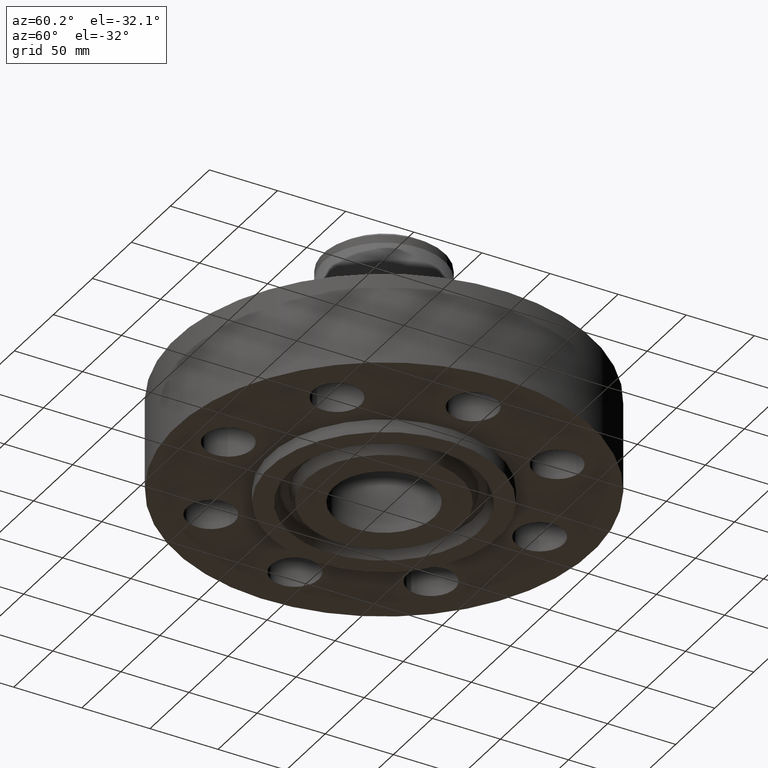
[diagram: clean part render]
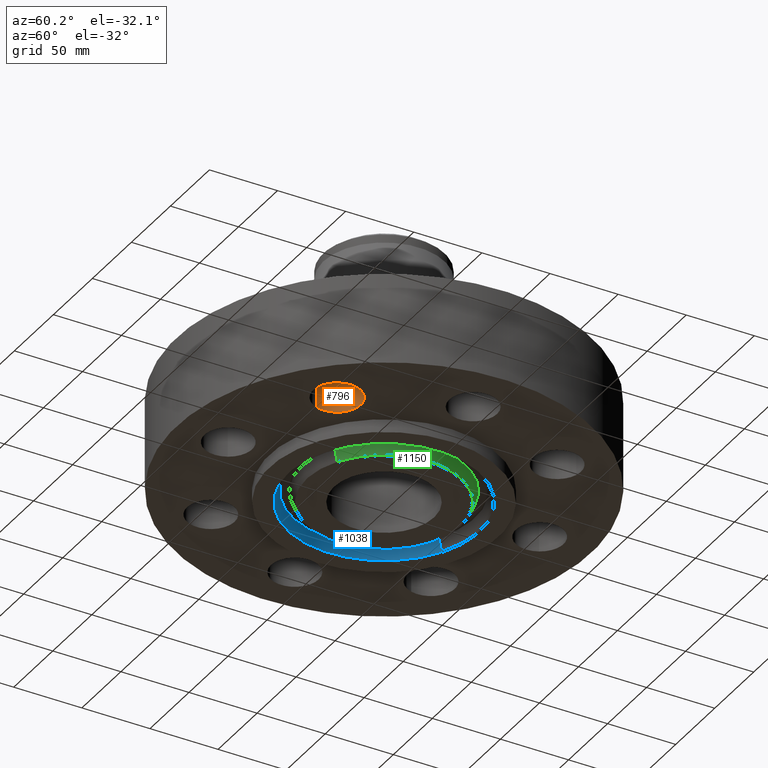
[diagram: same view with three faces highlighted in distinct colors, each labeled with its STEP entity id]
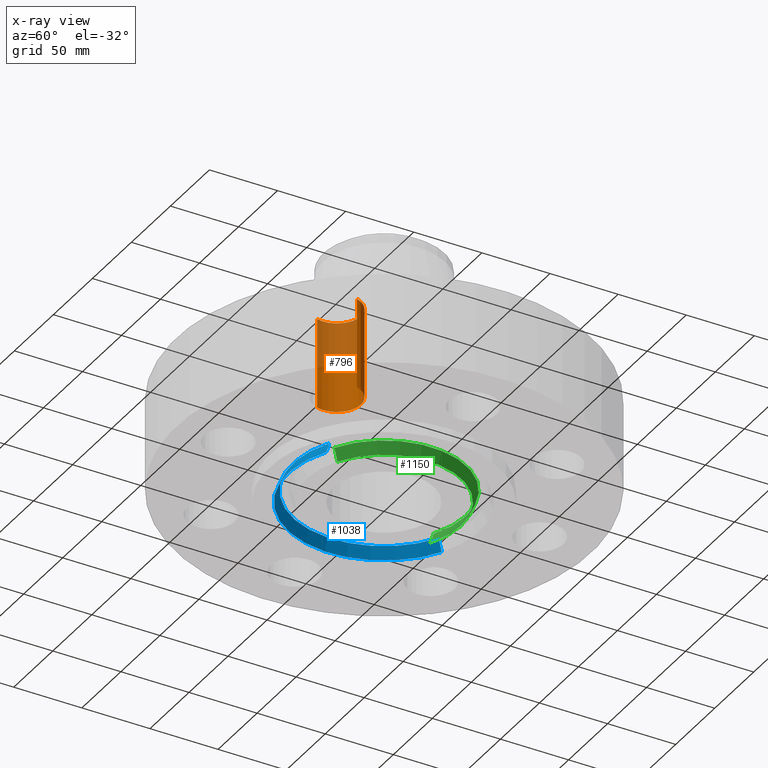
[diagram: x-ray of the same camera — body ghosted, the three highlighted faces saturated]
A machine part, auxiliary view with three faces highlighted in distinct colors.
The next image is the same camera in x-ray (body ghosted, the three faces saturated) — at least one of them is partly hidden behind the body in this view.
Their STEP definitions:

[orange] entity #796 — the highlighted cylindrical surface (edge-blend (fillet) strip) has radius 17.526 mm, axis along (-0, 0, -1).
#545=AXIS2_PLACEMENT_3D('Circle Axis2P3D',#543,#544,$) ;
#757=AXIS2_PLACEMENT_3D('Cylinder Axis2P3D',#754,#755,#756) ;
#787=AXIS2_PLACEMENT_3D('Circle Axis2P3D',#785,#786,$) ;
#538=CARTESIAN_POINT('Vertex',(3.84406976004,-2.98771823886,0.)) ;
#540=CARTESIAN_POINT('Vertex',(2.51989127066,-3.37624279184,0.)) ;
#543=CARTESIAN_POINT('Axis2P3D Location',(3.18198051535,-3.18198051535,0.)) ;
#754=CARTESIAN_POINT('Axis2P3D Location',(3.18198051535,-3.18198051535,2.61606299214)) ;
#759=CARTESIAN_POINT('Line Origine',(3.84406976004,-2.98771823886,1.31000000001)) ;
#763=CARTESIAN_POINT('Vertex',(3.84406976004,-2.98771823886,2.62000000001)) ;
#766=CARTESIAN_POINT('Line Origine',(2.51989127066,-3.37624279184,1.31000000001)) ;
#770=CARTESIAN_POINT('Vertex',(2.51989127066,-3.37624279184,2.62000000001)) ;
#785=CARTESIAN_POINT('Axis2P3D Location',(3.18198051535,-3.18198051535,2.62000000001)) ;
#544=DIRECTION('Axis2P3D Direction',(0.,0.,-0.0393700787402)) ;
#755=DIRECTION('Axis2P3D Direction',(-0.,0.,-0.0393700787402)) ;
#756=DIRECTION('Axis2P3D XDirection',(-0.0377775444876,-0.0110842335096,0.)) ;
#760=DIRECTION('Vector Direction',(0.,0.,-0.0393700787402)) ;
#767=DIRECTION('Vector Direction',(0.,0.,-0.0393700787402)) ;
#786=DIRECTION('Axis2P3D Direction',(-0.,0.,-0.0393700787402)) ;
#761=VECTOR('Line Direction',#760,0.0393700787402) ;
#768=VECTOR('Line Direction',#767,0.0393700787402) ;
#791=ORIENTED_EDGE('',*,*,#772,.F.) ;
#792=ORIENTED_EDGE('',*,*,#547,.T.) ;
#793=ORIENTED_EDGE('',*,*,#765,.T.) ;
#794=ORIENTED_EDGE('',*,*,#789,.F.) ;
#796=ADVANCED_FACE('PartBody',(#795),#758,.F.) ;
#546=CIRCLE('generated circle',#545,0.690000000003) ;
#788=CIRCLE('generated circle',#787,0.690000000003) ;
#758=CYLINDRICAL_SURFACE('generated cylinder',#757,0.690000000003) ;
#547=EDGE_CURVE('',#541,#539,#546,.T.) ;
#765=EDGE_CURVE('',#539,#764,#762,.F.) ;
#772=EDGE_CURVE('',#541,#771,#769,.F.) ;
#789=EDGE_CURVE('',#771,#764,#788,.T.) ;
#790=EDGE_LOOP('',(#791,#792,#793,#794)) ;
#795=FACE_OUTER_BOUND('',#790,.T.) ;
#762=LINE('Line',#759,#761) ;
#769=LINE('Line',#766,#768) ;
#539=VERTEX_POINT('',#538) ;
#541=VERTEX_POINT('',#540) ;
#764=VERTEX_POINT('',#763) ;
#771=VERTEX_POINT('',#770) ;

[blue] entity #1038 — the highlighted conical surface has half-angle 23 deg.
#937=AXIS2_PLACEMENT_3D('Circle Axis2P3D',#935,#936,$) ;
#984=AXIS2_PLACEMENT_3D('Circle Axis2P3D',#982,#983,$) ;
#1020=AXIS2_PLACEMENT_3D('Cone Axis2P3D',#1017,#1018,#1019) ;
#935=CARTESIAN_POINT('Axis2P3D Location',(-6.99353086378E-017,-8.39223703654E-016,-0.375000000001)) ;
#939=CARTESIAN_POINT('Vertex',(1.32585132702,-2.42695457492,-0.375000000001)) ;
#941=CARTESIAN_POINT('Vertex',(-1.32585132702,2.42695457492,-0.375000000001)) ;
#982=CARTESIAN_POINT('Axis2P3D Location',(0.,0.,-0.0383839389053)) ;
#986=CARTESIAN_POINT('Vertex',(-1.25734858943,2.30156115487,-0.0383839389053)) ;
#988=CARTESIAN_POINT('Vertex',(1.25734858943,-2.30156115487,-0.0383839389053)) ;
#1017=CARTESIAN_POINT('Axis2P3D Location',(0.,0.,-0.0383839389053)) ;
#1022=CARTESIAN_POINT('Line Origine',(-1.29159995823,2.3642578649,-0.206691969453)) ;
#1027=CARTESIAN_POINT('Line Origine',(1.29159995823,-2.3642578649,-0.206691969453)) ;
#936=DIRECTION('Axis2P3D Direction',(0.,0.,-0.0393700787402)) ;
#983=DIRECTION('Axis2P3D Direction',(0.,0.,0.0393700787402)) ;
#1018=DIRECTION('Axis2P3D Direction',(-0.,-0.,-0.0393700787402)) ;
#1019=DIRECTION('Axis2P3D XDirection',(-0.0188750212049,0.0345504945626,0.)) ;
#1023=DIRECTION('Vector Direction',(-0.00737505833565,0.0134999537303,-0.0362403485611)) ;
#1028=DIRECTION('Vector Direction',(0.00737505833565,-0.0134999537303,-0.0362403485611)) ;
#1024=VECTOR('Line Direction',#1023,0.0393700787402) ;
#1029=VECTOR('Line Direction',#1028,0.0393700787402) ;
#1033=ORIENTED_EDGE('',*,*,#943,.T.) ;
#1034=ORIENTED_EDGE('',*,*,#1026,.T.) ;
#1035=ORIENTED_EDGE('',*,*,#990,.T.) ;
#1036=ORIENTED_EDGE('',*,*,#1031,.F.) ;
#1038=ADVANCED_FACE('PartBody',(#1037),#1021,.F.) ;
#938=CIRCLE('generated circle',#937,2.76550000001) ;
#985=CIRCLE('generated circle',#984,2.62261495934) ;
#1021=CONICAL_SURFACE('Cone',#1020,2.62261495934,0.401425727959) ;
#943=EDGE_CURVE('',#940,#942,#938,.T.) ;
#990=EDGE_CURVE('',#987,#989,#985,.T.) ;
#1026=EDGE_CURVE('',#942,#987,#1025,.F.) ;
#1031=EDGE_CURVE('',#940,#989,#1030,.F.) ;
#1032=EDGE_LOOP('',(#1033,#1034,#1035,#1036)) ;
#1037=FACE_OUTER_BOUND('',#1032,.T.) ;
#1025=LINE('Line',#1022,#1024) ;
#1030=LINE('Line',#1027,#1029) ;
#940=VERTEX_POINT('',#939) ;
#942=VERTEX_POINT('',#941) ;
#987=VERTEX_POINT('',#986) ;
#989=VERTEX_POINT('',#988) ;

[green] entity #1150 — the highlighted conical surface has half-angle 23 deg.
#956=AXIS2_PLACEMENT_3D('Circle Axis2P3D',#954,#955,$) ;
#1100=AXIS2_PLACEMENT_3D('Circle Axis2P3D',#1098,#1099,$) ;
#1132=AXIS2_PLACEMENT_3D('Cone Axis2P3D',#1129,#1130,#1131) ;
#954=CARTESIAN_POINT('Axis2P3D Location',(-2.79741234551E-016,0.,-0.375000000001)) ;
#958=CARTESIAN_POINT('Vertex',(-1.07127636602,1.96095823455,-0.375000000001)) ;
#960=CARTESIAN_POINT('Vertex',(1.07127636602,-1.96095823455,-0.375000000001)) ;
#1095=CARTESIAN_POINT('Vertex',(1.1397791036,-2.0863516546,-0.0383839389053)) ;
#1098=CARTESIAN_POINT('Axis2P3D Location',(0.,0.,-0.0383839389053)) ;
#1102=CARTESIAN_POINT('Vertex',(-1.1397791036,2.0863516546,-0.0383839389053)) ;
#1129=CARTESIAN_POINT('Axis2P3D Location',(0.,0.,-0.435000000002)) ;
#1134=CARTESIAN_POINT('Line Origine',(-1.10552773481,2.02365494457,-0.206691969453)) ;
#1139=CARTESIAN_POINT('Line Origine',(1.10552773481,-2.02365494457,-0.206691969453)) ;
#955=DIRECTION('Axis2P3D Direction',(0.,0.,-0.0393700787402)) ;
#1099=DIRECTION('Axis2P3D Direction',(0.,0.,0.0393700787402)) ;
#1130=DIRECTION('Axis2P3D Direction',(0.,0.,0.0393700787402)) ;
#1131=DIRECTION('Axis2P3D XDirection',(-0.0188750212049,0.0345504945626,0.)) ;
#1135=DIRECTION('Vector Direction',(-0.00737505833565,0.0134999537303,0.0362403485611)) ;
#1140=DIRECTION('Vector Direction',(0.00737505833565,-0.0134999537303,0.0362403485611)) ;
#1136=VECTOR('Line Direction',#1135,0.0393700787402) ;
#1141=VECTOR('Line Direction',#1140,0.0393700787402) ;
#1145=ORIENTED_EDGE('',*,*,#1138,.F.) ;
#1146=ORIENTED_EDGE('',*,*,#1104,.F.) ;
#1147=ORIENTED_EDGE('',*,*,#1143,.T.) ;
#1148=ORIENTED_EDGE('',*,*,#962,.F.) ;
#1150=ADVANCED_FACE('PartBody',(#1149),#1133,.T.) ;
#957=CIRCLE('generated circle',#956,2.23450000001) ;
#1101=CIRCLE('generated circle',#1100,2.37738504068) ;
#1133=CONICAL_SURFACE('Cone',#1132,2.20903151104,0.401425727959) ;
#962=EDGE_CURVE('',#959,#961,#957,.T.) ;
#1104=EDGE_CURVE('',#1096,#1103,#1101,.T.) ;
#1138=EDGE_CURVE('',#1103,#959,#1137,.F.) ;
#1143=EDGE_CURVE('',#1096,#961,#1142,.F.) ;
#1144=EDGE_LOOP('',(#1145,#1146,#1147,#1148)) ;
#1149=FACE_OUTER_BOUND('',#1144,.T.) ;
#1137=LINE('Line',#1134,#1136) ;
#1142=LINE('Line',#1139,#1141) ;
#959=VERTEX_POINT('',#958) ;
#961=VERTEX_POINT('',#960) ;
#1096=VERTEX_POINT('',#1095) ;
#1103=VERTEX_POINT('',#1102) ;